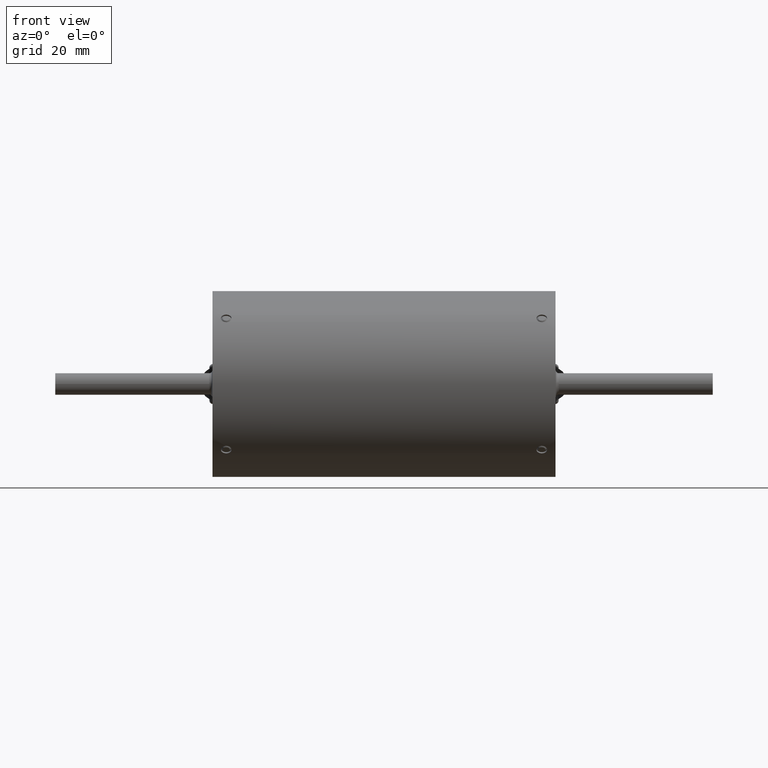
[diagram: clean part render]
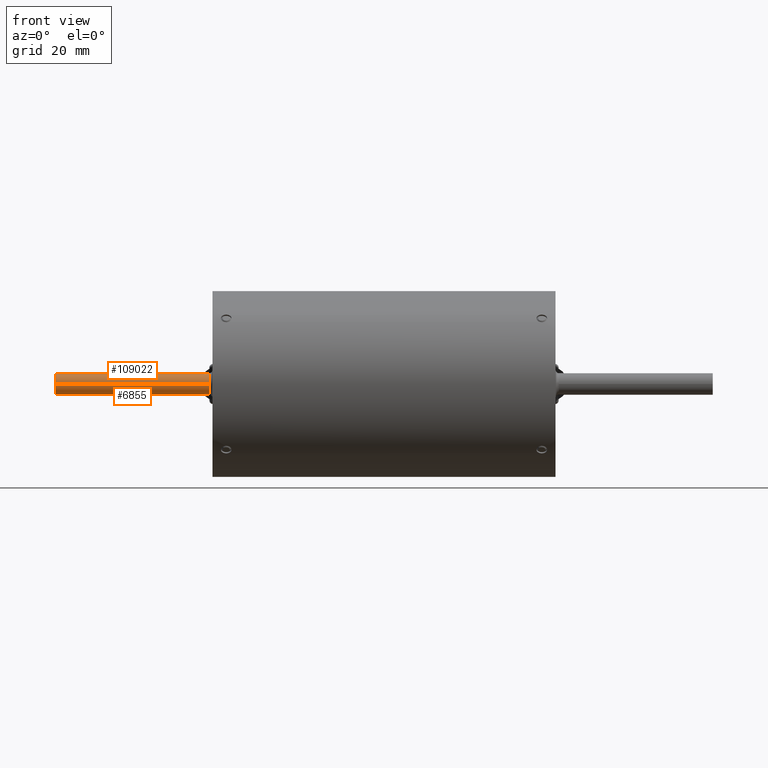
[diagram: same view with one multi-face feature highlighted, each face labeled with its STEP entity id]
A machine part, front view. The highlighted faces form ONE feature: a constant-radius fillet chain: 2 tangent blend faces with common blend radius 2.3812 mm. The faces share edges in the B-rep.
Their STEP definitions:
[1] entity #6855 (Cylinder):
#628 = VECTOR ( 'NONE', #32221, 39.37007874015748100 ) ;
#947 = CARTESIAN_POINT ( 'NONE',  ( -1.530000000000000000, -0.4687500000000000000, -7.931192205938901400E-017 ) ) ;
#4078 = AXIS2_PLACEMENT_3D ( 'NONE', #104044, #22534, #95311 ) ;
#4737 = VECTOR ( 'NONE', #69129, 39.37007874015748100 ) ;
#6412 = VERTEX_POINT ( 'NONE', #33626 ) ;
#6855 = ADVANCED_FACE ( 'NONE', ( #48958 ), #106669, .T. ) ;
#7558 = LINE ( 'NONE', #60468, #4737 ) ;
#10067 = DIRECTION ( 'NONE',  ( 0.0000000000000000000, 1.000000000000000000, 4.163336342344340100E-017 ) ) ;
#10873 = EDGE_LOOP ( 'NONE', ( #31000, #36994, #101812, #40402 ) ) ;
#12002 = DIRECTION ( 'NONE',  ( -1.000000000000000000, -4.174190205711362200E-017, -1.236936441474237700E-018 ) ) ;
#13412 = EDGE_CURVE ( 'NONE', #50199, #74029, #84722, .T. ) ;
#17710 = VERTEX_POINT ( 'NONE', #62353 ) ;
#22534 = DIRECTION ( 'NONE',  ( 1.000000000000000000, 4.174190205711362200E-017, 1.236936441474237700E-018 ) ) ;
#23205 = CARTESIAN_POINT ( 'NONE',  ( -2.874999999999996900, -0.4687500000000001100, -0.09375000000000011100 ) ) ;
#23493 = EDGE_CURVE ( 'NONE', #17710, #6412, #81864, .T. ) ;
#24765 = LINE ( 'NONE', #23205, #628 ) ;
#31000 = ORIENTED_EDGE ( 'NONE', *, *, #37970, .F. ) ;
#32221 = DIRECTION ( 'NONE',  ( 1.000000000000000000, 4.174190205711362200E-017, 1.236936441474237700E-018 ) ) ;
#33626 = CARTESIAN_POINT ( 'NONE',  ( -2.874999999999996900, -0.5625000000000001100, -8.404688963722828400E-017 ) ) ;
#36994 = ORIENTED_EDGE ( 'NONE', *, *, #23493, .F. ) ;
#37970 = EDGE_CURVE ( 'NONE', #6412, #74029, #7558, .T. ) ;
#38162 = CARTESIAN_POINT ( 'NONE',  ( -1.530000000000000000, -0.5625000000000000000, -8.404688963722828400E-017 ) ) ;
#40402 = ORIENTED_EDGE ( 'NONE', *, *, #13412, .T. ) ;
#42098 = AXIS2_PLACEMENT_3D ( 'NONE', #66108, #12002, #75158 ) ;
#48958 = FACE_OUTER_BOUND ( 'NONE', #10873, .T. ) ;
#50199 = VERTEX_POINT ( 'NONE', #51513 ) ;
#51513 = CARTESIAN_POINT ( 'NONE',  ( -1.530000000000000000, -0.4687500000000000000, -0.09375000000000011100 ) ) ;
#60468 = CARTESIAN_POINT ( 'NONE',  ( -2.874999999999996900, -0.5625000000000001100, -8.487872939411971300E-017 ) ) ;
#62353 = CARTESIAN_POINT ( 'NONE',  ( -2.874999999999996900, -0.4687500000000001100, -0.09375000000000011100 ) ) ;
#64170 = DIRECTION ( 'NONE',  ( -1.000000000000000000, -4.174190205711362200E-017, -1.236936441474237700E-018 ) ) ;
#64888 = EDGE_CURVE ( 'NONE', #17710, #50199, #24765, .T. ) ;
#66108 = CARTESIAN_POINT ( 'NONE',  ( -2.874999999999996900, -0.4687500000000001100, -8.097560157317189700E-017 ) ) ;
#69129 = DIRECTION ( 'NONE',  ( 1.000000000000000000, 4.174190205711362200E-017, 1.236936441474237700E-018 ) ) ;
#74029 = VERTEX_POINT ( 'NONE', #38162 ) ;
#75158 = DIRECTION ( 'NONE',  ( 0.0000000000000000000, 1.000000000000000000, 4.163336342344340100E-017 ) ) ;
#76991 = AXIS2_PLACEMENT_3D ( 'NONE', #947, #64170, #10067 ) ;
#81864 = CIRCLE ( 'NONE', #42098, 0.09374999999999998600 ) ;
#84722 = CIRCLE ( 'NONE', #76991, 0.09374999999999998600 ) ;
#95311 = DIRECTION ( 'NONE',  ( 0.0000000000000000000, -1.000000000000000000, -4.163336342344340100E-017 ) ) ;
#101812 = ORIENTED_EDGE ( 'NONE', *, *, #64888, .T. ) ;
#104044 = CARTESIAN_POINT ( 'NONE',  ( -2.874999999999996900, -0.4687500000000001100, -8.097560157317189700E-017 ) ) ;
#106669 = CYLINDRICAL_SURFACE ( 'NONE', #4078, 0.09374999999999998600 ) ;
[2] entity #109022 (Cylinder):
#707 = CIRCLE ( 'NONE', #25746, 0.09374999999999998600 ) ;
#4737 = VECTOR ( 'NONE', #69129, 39.37007874015748100 ) ;
#6412 = VERTEX_POINT ( 'NONE', #33626 ) ;
#7558 = LINE ( 'NONE', #60468, #4737 ) ;
#8245 = VERTEX_POINT ( 'NONE', #25497 ) ;
#8408 = AXIS2_PLACEMENT_3D ( 'NONE', #81952, #63931, #82321 ) ;
#10183 = CARTESIAN_POINT ( 'NONE',  ( -1.530000000000000000, -0.4687500000000000000, -7.931192205938901400E-017 ) ) ;
#12396 = CIRCLE ( 'NONE', #30214, 0.09374999999999998600 ) ;
#18757 = VECTOR ( 'NONE', #114159, 39.37007874015748100 ) ;
#19326 = DIRECTION ( 'NONE',  ( 0.0000000000000000000, 1.000000000000000000, 4.163336342344340100E-017 ) ) ;
#25497 = CARTESIAN_POINT ( 'NONE',  ( -2.874999999999996900, -0.4687500000000001100, 0.09374999999999987500 ) ) ;
#25746 = AXIS2_PLACEMENT_3D ( 'NONE', #10183, #73329, #19326 ) ;
#30214 = AXIS2_PLACEMENT_3D ( 'NONE', #45585, #108643, #54811 ) ;
#31529 = EDGE_LOOP ( 'NONE', ( #89128, #77996, #54487, #113757 ) ) ;
#33626 = CARTESIAN_POINT ( 'NONE',  ( -2.874999999999996900, -0.5625000000000001100, -8.404688963722828400E-017 ) ) ;
#37311 = CYLINDRICAL_SURFACE ( 'NONE', #8408, 0.09374999999999998600 ) ;
#37970 = EDGE_CURVE ( 'NONE', #6412, #74029, #7558, .T. ) ;
#38162 = CARTESIAN_POINT ( 'NONE',  ( -1.530000000000000000, -0.5625000000000000000, -8.404688963722828400E-017 ) ) ;
#41018 = EDGE_CURVE ( 'NONE', #74029, #109298, #707, .T. ) ;
#45585 = CARTESIAN_POINT ( 'NONE',  ( -2.874999999999996900, -0.4687500000000001100, -8.097560157317189700E-017 ) ) ;
#51600 = FACE_OUTER_BOUND ( 'NONE', #31529, .T. ) ;
#54487 = ORIENTED_EDGE ( 'NONE', *, *, #41018, .T. ) ;
#54811 = DIRECTION ( 'NONE',  ( 0.0000000000000000000, 1.000000000000000000, 4.163336342344340100E-017 ) ) ;
#60468 = CARTESIAN_POINT ( 'NONE',  ( -2.874999999999996900, -0.5625000000000001100, -8.487872939411971300E-017 ) ) ;
#63931 = DIRECTION ( 'NONE',  ( 1.000000000000000000, 4.174190205711362200E-017, 1.236936441474237700E-018 ) ) ;
#69129 = DIRECTION ( 'NONE',  ( 1.000000000000000000, 4.174190205711362200E-017, 1.236936441474237700E-018 ) ) ;
#69261 = CARTESIAN_POINT ( 'NONE',  ( -2.874999999999996900, -0.4687500000000001100, 0.09374999999999987500 ) ) ;
#73329 = DIRECTION ( 'NONE',  ( -1.000000000000000000, -4.174190205711362200E-017, -1.236936441474237700E-018 ) ) ;
#74029 = VERTEX_POINT ( 'NONE', #38162 ) ;
#77996 = ORIENTED_EDGE ( 'NONE', *, *, #37970, .T. ) ;
#81952 = CARTESIAN_POINT ( 'NONE',  ( -2.874999999999996900, -0.4687500000000001100, -8.097560157317189700E-017 ) ) ;
#82321 = DIRECTION ( 'NONE',  ( 0.0000000000000000000, -1.000000000000000000, -4.163336342344340100E-017 ) ) ;
#86666 = CARTESIAN_POINT ( 'NONE',  ( -1.530000000000000000, -0.4687500000000000000, 0.09374999999999987500 ) ) ;
#89128 = ORIENTED_EDGE ( 'NONE', *, *, #102468, .F. ) ;
#90055 = EDGE_CURVE ( 'NONE', #8245, #109298, #90651, .T. ) ;
#90651 = LINE ( 'NONE', #69261, #18757 ) ;
#102468 = EDGE_CURVE ( 'NONE', #6412, #8245, #12396, .T. ) ;
#108643 = DIRECTION ( 'NONE',  ( -1.000000000000000000, -4.174190205711362200E-017, -1.236936441474237700E-018 ) ) ;
#109022 = ADVANCED_FACE ( 'NONE', ( #51600 ), #37311, .T. ) ;
#109298 = VERTEX_POINT ( 'NONE', #86666 ) ;
#113757 = ORIENTED_EDGE ( 'NONE', *, *, #90055, .F. ) ;
#114159 = DIRECTION ( 'NONE',  ( 1.000000000000000000, 4.174190205711362200E-017, 1.236936441474237700E-018 ) ) ;